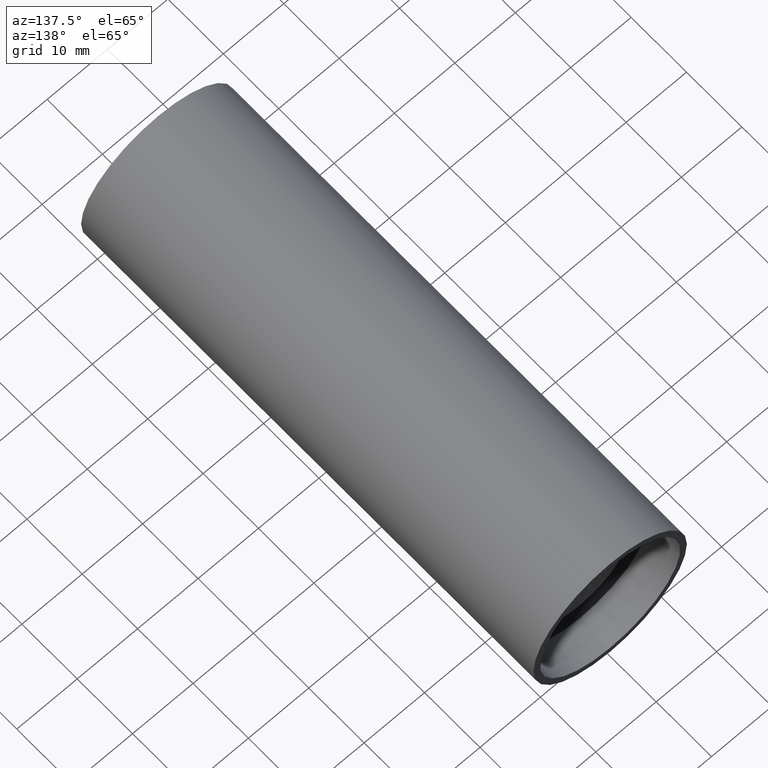
[diagram: clean part render]
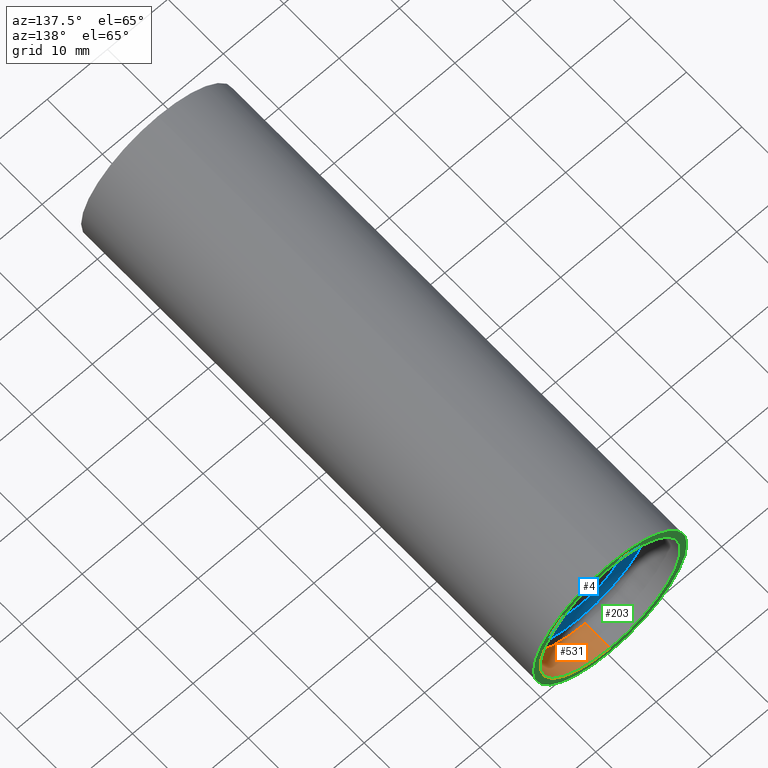
[diagram: same view with three faces highlighted in distinct colors, each labeled with its STEP entity id]
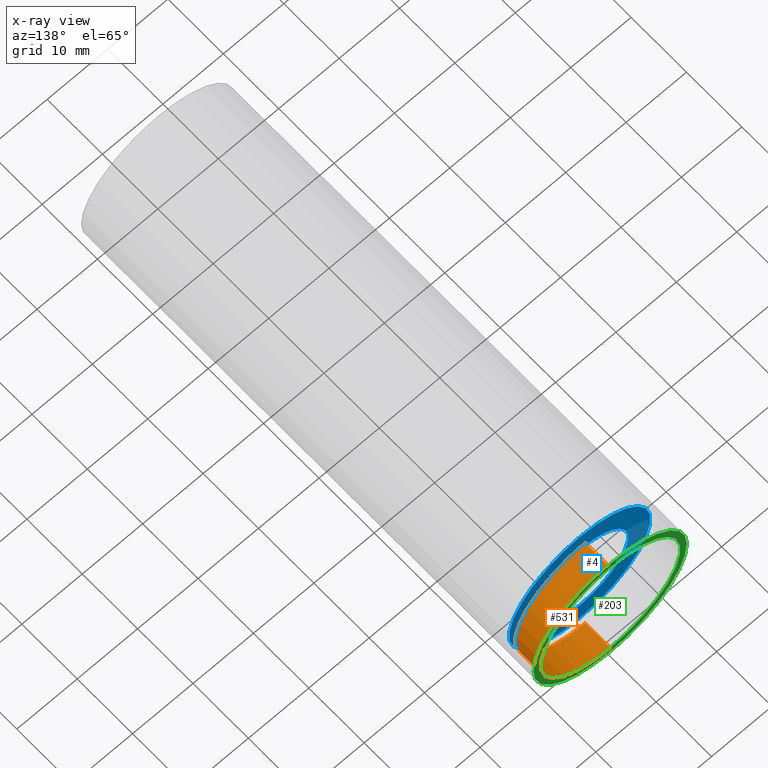
[diagram: x-ray of the same camera — body ghosted, the three highlighted faces saturated]
A machine part, auxiliary view with three faces highlighted in distinct colors.
The next image is the same camera in x-ray (body ghosted, the three faces saturated) — at least one of them is partly hidden behind the body in this view.
Their STEP definitions:

[orange] entity #531 — the highlighted cylindrical surface (partial cylindrical patch) has radius 11.6 mm, axis along (-0, 1, -0).
#5 = VERTEX_POINT ( 'NONE', #463 ) ;
#20 = ORIENTED_EDGE ( 'NONE', *, *, #419, .F. ) ;
#38 = ORIENTED_EDGE ( 'NONE', *, *, #359, .T. ) ;
#51 = CIRCLE ( 'NONE', #600, 11.60000000000003300 ) ;
#54 = VERTEX_POINT ( 'NONE', #427 ) ;
#73 = DIRECTION ( 'NONE',  ( 0.0000000000000000000, 0.0000000000000000000, 1.000000000000000000 ) ) ;
#87 = VERTEX_POINT ( 'NONE', #418 ) ;
#141 = VERTEX_POINT ( 'NONE', #470 ) ;
#146 = EDGE_CURVE ( 'NONE', #54, #141, #519, .T. ) ;
#179 = EDGE_LOOP ( 'NONE', ( #258, #20, #499, #38 ) ) ;
#212 = FACE_OUTER_BOUND ( 'NONE', #179, .T. ) ;
#218 = DIRECTION ( 'NONE',  ( -0.0000000000000000000, 1.000000000000000000, -0.0000000000000000000 ) ) ;
#240 = VECTOR ( 'NONE', #527, 1000.000000000000000 ) ;
#257 = LINE ( 'NONE', #391, #512 ) ;
#258 = ORIENTED_EDGE ( 'NONE', *, *, #518, .F. ) ;
#278 = CYLINDRICAL_SURFACE ( 'NONE', #290, 11.60000000000003300 ) ;
#282 = CIRCLE ( 'NONE', #455, 11.60000000000003200 ) ;
#290 = AXIS2_PLACEMENT_3D ( 'NONE', #310, #306, #555 ) ;
#306 = DIRECTION ( 'NONE',  ( -0.0000000000000000000, 1.000000000000000000, -0.0000000000000000000 ) ) ;
#310 = CARTESIAN_POINT ( 'NONE',  ( 0.0000000000000000000, 161.3761669434274500, 0.0000000000000000000 ) ) ;
#332 = CARTESIAN_POINT ( 'NONE',  ( 0.0000000000000000000, 161.3761669434274500, 11.60000000000003300 ) ) ;
#359 = EDGE_CURVE ( 'NONE', #141, #5, #282, .T. ) ;
#391 = CARTESIAN_POINT ( 'NONE',  ( 1.420590287010933900E-015, 161.3761669434274500, -11.60000000000003300 ) ) ;
#418 = CARTESIAN_POINT ( 'NONE',  ( 1.420590287010933900E-015, 77.19999999999998900, -11.60000000000003300 ) ) ;
#419 = EDGE_CURVE ( 'NONE', #54, #87, #51, .T. ) ;
#427 = CARTESIAN_POINT ( 'NONE',  ( 0.0000000000000000000, 77.19999999999998900, 11.60000000000003300 ) ) ;
#455 = AXIS2_PLACEMENT_3D ( 'NONE', #456, #218, #557 ) ;
#456 = CARTESIAN_POINT ( 'NONE',  ( 0.0000000000000000000, 81.69999999999998900, 0.0000000000000000000 ) ) ;
#459 = CARTESIAN_POINT ( 'NONE',  ( 0.0000000000000000000, 77.19999999999998900, 0.0000000000000000000 ) ) ;
#463 = CARTESIAN_POINT ( 'NONE',  ( 1.420590287010933700E-015, 81.69999999999998900, -11.60000000000003200 ) ) ;
#470 = CARTESIAN_POINT ( 'NONE',  ( 0.0000000000000000000, 81.69999999999998900, 11.60000000000003200 ) ) ;
#489 = DIRECTION ( 'NONE',  ( -0.0000000000000000000, 1.000000000000000000, -0.0000000000000000000 ) ) ;
#499 = ORIENTED_EDGE ( 'NONE', *, *, #146, .T. ) ;
#512 = VECTOR ( 'NONE', #489, 1000.000000000000000 ) ;
#518 = EDGE_CURVE ( 'NONE', #87, #5, #257, .T. ) ;
#519 = LINE ( 'NONE', #332, #240 ) ;
#527 = DIRECTION ( 'NONE',  ( -0.0000000000000000000, 1.000000000000000000, -0.0000000000000000000 ) ) ;
#531 = ADVANCED_FACE ( 'NONE', ( #212 ), #278, .F. ) ;
#555 = DIRECTION ( 'NONE',  ( 0.0000000000000000000, 0.0000000000000000000, 1.000000000000000000 ) ) ;
#557 = DIRECTION ( 'NONE',  ( 0.0000000000000000000, 0.0000000000000000000, 1.000000000000000000 ) ) ;
#561 = DIRECTION ( 'NONE',  ( -0.0000000000000000000, 1.000000000000000000, -0.0000000000000000000 ) ) ;
#600 = AXIS2_PLACEMENT_3D ( 'NONE', #459, #561, #73 ) ;

[blue] entity #4 — the highlighted planar face has unit normal (0, -1, 0).
#4 = ADVANCED_FACE ( 'NONE', ( #47, #53 ), #472, .F. ) ;
#7 = EDGE_CURVE ( 'NONE', #382, #331, #500, .T. ) ;
#8 = EDGE_CURVE ( 'NONE', #465, #616, #311, .T. ) ;
#40 = DIRECTION ( 'NONE',  ( 0.0000000000000000000, 0.0000000000000000000, 1.000000000000000000 ) ) ;
#47 = FACE_BOUND ( 'NONE', #72, .T. ) ;
#53 = FACE_OUTER_BOUND ( 'NONE', #423, .T. ) ;
#72 = EDGE_LOOP ( 'NONE', ( #501, #524 ) ) ;
#82 = CIRCLE ( 'NONE', #431, 8.000000000000019500 ) ;
#122 = DIRECTION ( 'NONE',  ( 0.0000000000000000000, 0.0000000000000000000, 1.000000000000000000 ) ) ;
#128 = AXIS2_PLACEMENT_3D ( 'NONE', #624, #135, #522 ) ;
#135 = DIRECTION ( 'NONE',  ( 0.0000000000000000000, -1.000000000000000000, 0.0000000000000000000 ) ) ;
#154 = EDGE_CURVE ( 'NONE', #616, #465, #298, .T. ) ;
#158 = AXIS2_PLACEMENT_3D ( 'NONE', #296, #338, #247 ) ;
#208 = CARTESIAN_POINT ( 'NONE',  ( 9.797174393178849300E-016, 76.19999999999998900, -8.000000000000019500 ) ) ;
#211 = CARTESIAN_POINT ( 'NONE',  ( 1.432836755002404500E-015, 76.19999999999998900, -11.70000000000000800 ) ) ;
#216 = ORIENTED_EDGE ( 'NONE', *, *, #8, .T. ) ;
#234 = DIRECTION ( 'NONE',  ( 0.0000000000000000000, 0.0000000000000000000, 1.000000000000000000 ) ) ;
#247 = DIRECTION ( 'NONE',  ( 0.0000000000000000000, 0.0000000000000000000, 1.000000000000000000 ) ) ;
#275 = AXIS2_PLACEMENT_3D ( 'NONE', #276, #566, #234 ) ;
#276 = CARTESIAN_POINT ( 'NONE',  ( 0.0000000000000000000, 76.19999999999998900, 0.0000000000000000000 ) ) ;
#296 = CARTESIAN_POINT ( 'NONE',  ( 0.0000000000000000000, 76.19999999999998900, 0.0000000000000000000 ) ) ;
#298 = CIRCLE ( 'NONE', #158, 11.70000000000000800 ) ;
#311 = CIRCLE ( 'NONE', #275, 11.70000000000000800 ) ;
#331 = VERTEX_POINT ( 'NONE', #496 ) ;
#338 = DIRECTION ( 'NONE',  ( -0.0000000000000000000, 1.000000000000000000, -0.0000000000000000000 ) ) ;
#376 = EDGE_CURVE ( 'NONE', #331, #382, #82, .T. ) ;
#382 = VERTEX_POINT ( 'NONE', #208 ) ;
#407 = DIRECTION ( 'NONE',  ( -0.0000000000000000000, 1.000000000000000000, -0.0000000000000000000 ) ) ;
#420 = DIRECTION ( 'NONE',  ( -0.0000000000000000000, 1.000000000000000000, -0.0000000000000000000 ) ) ;
#423 = EDGE_LOOP ( 'NONE', ( #491, #216 ) ) ;
#431 = AXIS2_PLACEMENT_3D ( 'NONE', #506, #407, #122 ) ;
#465 = VERTEX_POINT ( 'NONE', #211 ) ;
#472 = PLANE ( 'NONE',  #128 ) ;
#478 = AXIS2_PLACEMENT_3D ( 'NONE', #617, #420, #40 ) ;
#491 = ORIENTED_EDGE ( 'NONE', *, *, #154, .T. ) ;
#496 = CARTESIAN_POINT ( 'NONE',  ( 0.0000000000000000000, 76.19999999999998900, 8.000000000000019500 ) ) ;
#500 = CIRCLE ( 'NONE', #478, 8.000000000000019500 ) ;
#501 = ORIENTED_EDGE ( 'NONE', *, *, #376, .F. ) ;
#506 = CARTESIAN_POINT ( 'NONE',  ( 0.0000000000000000000, 76.19999999999998900, 0.0000000000000000000 ) ) ;
#522 = DIRECTION ( 'NONE',  ( 0.0000000000000000000, -0.0000000000000000000, -1.000000000000000000 ) ) ;
#524 = ORIENTED_EDGE ( 'NONE', *, *, #7, .F. ) ;
#566 = DIRECTION ( 'NONE',  ( -0.0000000000000000000, 1.000000000000000000, -0.0000000000000000000 ) ) ;
#604 = CARTESIAN_POINT ( 'NONE',  ( 0.0000000000000000000, 76.19999999999998900, 11.70000000000000800 ) ) ;
#616 = VERTEX_POINT ( 'NONE', #604 ) ;
#617 = CARTESIAN_POINT ( 'NONE',  ( 0.0000000000000000000, 76.19999999999998900, 0.0000000000000000000 ) ) ;
#624 = CARTESIAN_POINT ( 'NONE',  ( 8.000000000000019500, 76.19999999999998900, 0.0000000000000000000 ) ) ;

[green] entity #203 — the highlighted planar face has unit normal (0, -1, 0).
#5 = VERTEX_POINT ( 'NONE', #463 ) ;
#15 = DIRECTION ( 'NONE',  ( -0.0000000000000000000, 1.000000000000000000, -0.0000000000000000000 ) ) ;
#46 = DIRECTION ( 'NONE',  ( -0.0000000000000000000, 1.000000000000000000, -0.0000000000000000000 ) ) ;
#48 = CARTESIAN_POINT ( 'NONE',  ( 0.0000000000000000000, 81.69999999999998900, 0.0000000000000000000 ) ) ;
#84 = ORIENTED_EDGE ( 'NONE', *, *, #424, .T. ) ;
#115 = ORIENTED_EDGE ( 'NONE', *, *, #145, .T. ) ;
#141 = VERTEX_POINT ( 'NONE', #470 ) ;
#145 = EDGE_CURVE ( 'NONE', #308, #421, #367, .T. ) ;
#168 = DIRECTION ( 'NONE',  ( -0.0000000000000000000, 1.000000000000000000, -0.0000000000000000000 ) ) ;
#181 = CIRCLE ( 'NONE', #517, 11.60000000000003200 ) ;
#203 = ADVANCED_FACE ( 'NONE', ( #345, #443 ), #441, .F. ) ;
#206 = CARTESIAN_POINT ( 'NONE',  ( 0.0000000000000000000, 81.69999999999998900, 0.0000000000000000000 ) ) ;
#218 = DIRECTION ( 'NONE',  ( -0.0000000000000000000, 1.000000000000000000, -0.0000000000000000000 ) ) ;
#231 = AXIS2_PLACEMENT_3D ( 'NONE', #48, #46, #480 ) ;
#241 = ORIENTED_EDGE ( 'NONE', *, *, #359, .F. ) ;
#250 = DIRECTION ( 'NONE',  ( 0.0000000000000000000, 0.0000000000000000000, 1.000000000000000000 ) ) ;
#282 = CIRCLE ( 'NONE', #455, 11.60000000000003200 ) ;
#308 = VERTEX_POINT ( 'NONE', #594 ) ;
#312 = DIRECTION ( 'NONE',  ( 0.0000000000000000000, 0.0000000000000000000, 1.000000000000000000 ) ) ;
#345 = FACE_BOUND ( 'NONE', #396, .T. ) ;
#359 = EDGE_CURVE ( 'NONE', #141, #5, #282, .T. ) ;
#365 = ORIENTED_EDGE ( 'NONE', *, *, #442, .F. ) ;
#367 = CIRCLE ( 'NONE', #231, 12.70000000000001900 ) ;
#396 = EDGE_LOOP ( 'NONE', ( #241, #365 ) ) ;
#416 = AXIS2_PLACEMENT_3D ( 'NONE', #437, #487, #586 ) ;
#421 = VERTEX_POINT ( 'NONE', #606 ) ;
#424 = EDGE_CURVE ( 'NONE', #421, #308, #447, .T. ) ;
#437 = CARTESIAN_POINT ( 'NONE',  ( 11.60000000000003200, 81.69999999999998900, 0.0000000000000000000 ) ) ;
#441 = PLANE ( 'NONE',  #416 ) ;
#442 = EDGE_CURVE ( 'NONE', #5, #141, #181, .T. ) ;
#443 = FACE_OUTER_BOUND ( 'NONE', #597, .T. ) ;
#447 = CIRCLE ( 'NONE', #466, 12.70000000000001900 ) ;
#452 = CARTESIAN_POINT ( 'NONE',  ( 0.0000000000000000000, 81.69999999999998900, 0.0000000000000000000 ) ) ;
#455 = AXIS2_PLACEMENT_3D ( 'NONE', #456, #218, #557 ) ;
#456 = CARTESIAN_POINT ( 'NONE',  ( 0.0000000000000000000, 81.69999999999998900, 0.0000000000000000000 ) ) ;
#463 = CARTESIAN_POINT ( 'NONE',  ( 1.420590287010933700E-015, 81.69999999999998900, -11.60000000000003200 ) ) ;
#466 = AXIS2_PLACEMENT_3D ( 'NONE', #452, #168, #312 ) ;
#470 = CARTESIAN_POINT ( 'NONE',  ( 0.0000000000000000000, 81.69999999999998900, 11.60000000000003200 ) ) ;
#480 = DIRECTION ( 'NONE',  ( 0.0000000000000000000, 0.0000000000000000000, 1.000000000000000000 ) ) ;
#487 = DIRECTION ( 'NONE',  ( 0.0000000000000000000, -1.000000000000000000, 0.0000000000000000000 ) ) ;
#517 = AXIS2_PLACEMENT_3D ( 'NONE', #206, #15, #250 ) ;
#557 = DIRECTION ( 'NONE',  ( 0.0000000000000000000, 0.0000000000000000000, 1.000000000000000000 ) ) ;
#586 = DIRECTION ( 'NONE',  ( 0.0000000000000000000, -0.0000000000000000000, -1.000000000000000000 ) ) ;
#594 = CARTESIAN_POINT ( 'NONE',  ( 1.555301434917140800E-015, 81.69999999999998900, -12.70000000000001900 ) ) ;
#597 = EDGE_LOOP ( 'NONE', ( #84, #115 ) ) ;
#606 = CARTESIAN_POINT ( 'NONE',  ( 0.0000000000000000000, 81.69999999999998900, 12.70000000000001900 ) ) ;